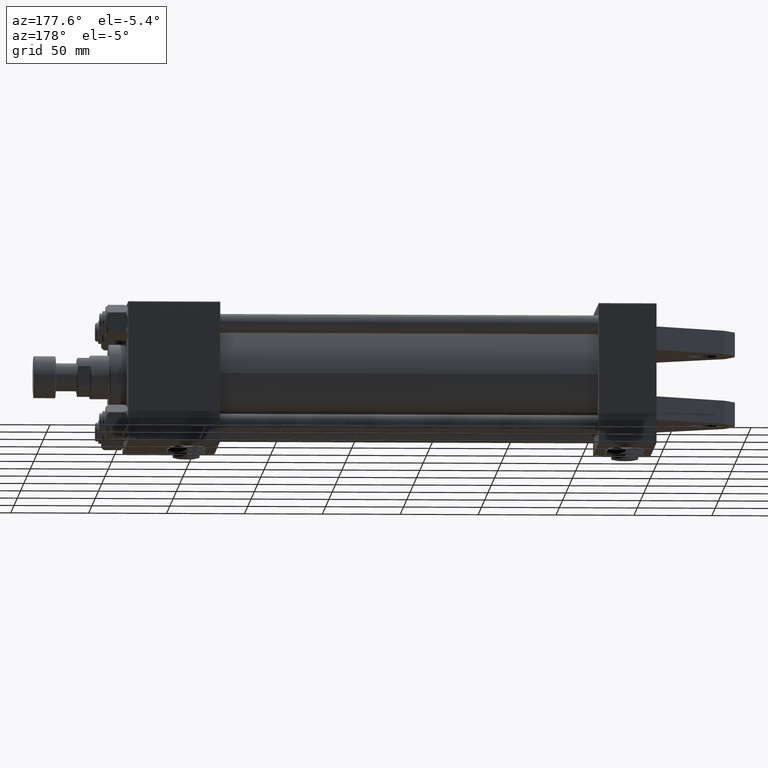
[diagram: clean part render]
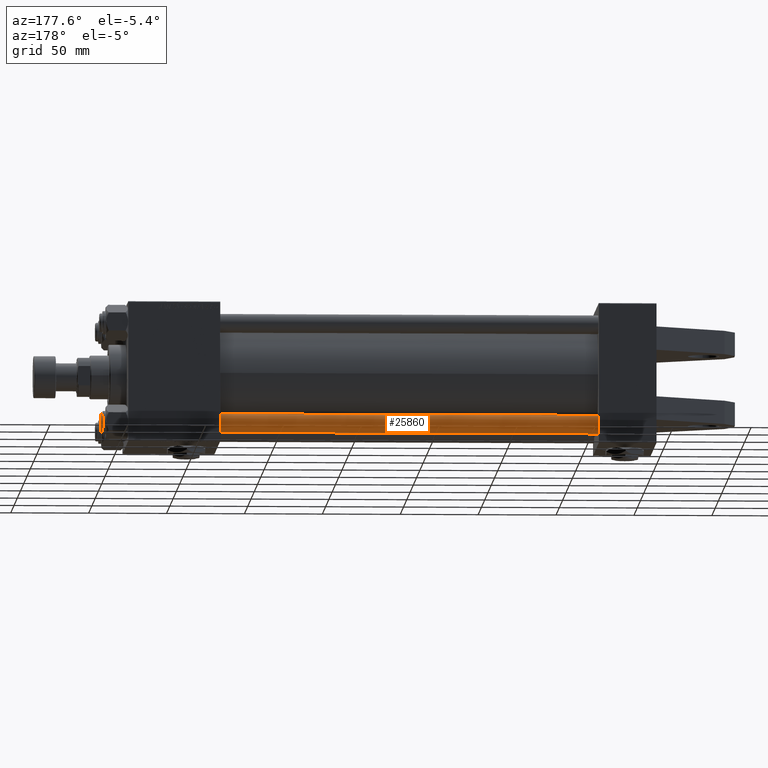
[diagram: same view with one face highlighted and labeled with its STEP entity id]
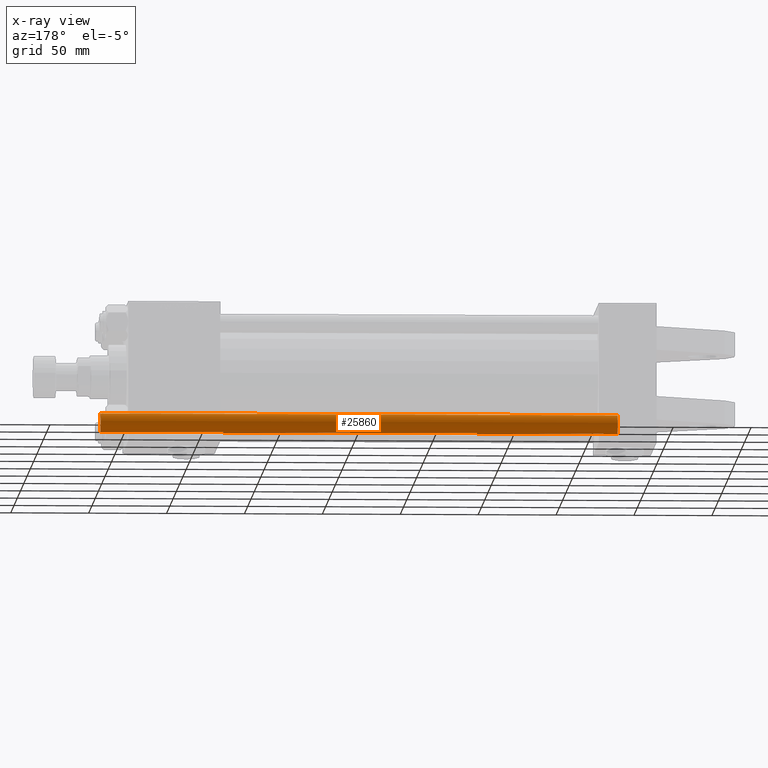
[diagram: x-ray of the same camera — body ghosted, the highlighted face saturated]
A machine part, auxiliary view. The second image highlights one B-rep face of the part: STEP entity #25860.
The next image is the same camera in x-ray: the body ghosted, the highlighted face saturated — about 0% of this face is hidden behind the body in this view.
In plain terms, the highlighted cylindrical surface (edge-blend (fillet) strip) has radius 6 mm, axis along (1, -0, -0).
Its self-contained STEP definition (entity closure, byte-faithful):
#522 = VERTEX_POINT ( 'NONE', #28605 ) ;
#4490 = EDGE_CURVE ( 'NONE', #28718, #522, #32821, .T. ) ;
#5802 = EDGE_CURVE ( 'NONE', #47000, #29480, #21941, .T. ) ;
#6775 = AXIS2_PLACEMENT_3D ( 'NONE', #44190, #31251, #11700 ) ;
#8402 = FACE_OUTER_BOUND ( 'NONE', #24166, .T. ) ;
#9032 = DIRECTION ( 'NONE',  ( -0.000000000000000000, -0.000000000000000000, -1.000000000000000000 ) ) ;
#11700 = DIRECTION ( 'NONE',  ( 1.000000000000000000, 0.000000000000000000, 0.000000000000000000 ) ) ;
#12107 = DIRECTION ( 'NONE',  ( -1.000000000000000000, 0.000000000000000000, 0.000000000000000000 ) ) ;
#15782 = ORIENTED_EDGE ( 'NONE', *, *, #18003, .T. ) ;
#18003 = EDGE_CURVE ( 'NONE', #29480, #28718, #33066, .T. ) ;
#18033 = LINE ( 'NONE', #38858, #35235 ) ;
#18575 = DIRECTION ( 'NONE',  ( -0.000000000000000000, -0.000000000000000000, 1.000000000000000000 ) ) ;
#21175 = CARTESIAN_POINT ( 'NONE',  ( 6.000000000000000888, 7.347880794884120722E-16, 333.0000000000000000 ) ) ;
#21941 = CIRCLE ( 'NONE', #6775, 6.000000000000000888 ) ;
#22238 = ORIENTED_EDGE ( 'NONE', *, *, #5802, .T. ) ;
#22861 = CARTESIAN_POINT ( 'NONE',  ( -6.000000000000000888, 0.000000000000000000, 332.5000000000001137 ) ) ;
#24071 = CARTESIAN_POINT ( 'NONE',  ( 6.000000000000000888, 7.347880794884120722E-16, 0.5000000000000004441 ) ) ;
#24166 = EDGE_LOOP ( 'NONE', ( #22238, #15782, #46731, #35653 ) ) ;
#24773 = DIRECTION ( 'NONE',  ( -0.000000000000000000, -0.000000000000000000, -1.000000000000000000 ) ) ;
#25353 = EDGE_CURVE ( 'NONE', #47000, #522, #18033, .T. ) ;
#25860 = ADVANCED_FACE ( 'NONE', ( #8402 ), #44852, .T. ) ;
#26216 = DIRECTION ( 'NONE',  ( -0.000000000000000000, -0.000000000000000000, -1.000000000000000000 ) ) ;
#28605 = CARTESIAN_POINT ( 'NONE',  ( -6.000000000000000888, 0.000000000000000000, 0.5000000000000004441 ) ) ;
#28718 = VERTEX_POINT ( 'NONE', #24071 ) ;
#29480 = VERTEX_POINT ( 'NONE', #38176 ) ;
#31251 = DIRECTION ( 'NONE',  ( 0.000000000000000000, 0.000000000000000000, -1.000000000000000000 ) ) ;
#32821 = CIRCLE ( 'NONE', #39558, 6.000000000000000888 ) ;
#33066 = LINE ( 'NONE', #21175, #49232 ) ;
#35235 = VECTOR ( 'NONE', #26216, 1000.000000000000000 ) ;
#35653 = ORIENTED_EDGE ( 'NONE', *, *, #25353, .F. ) ;
#38176 = CARTESIAN_POINT ( 'NONE',  ( 6.000000000000000888, 7.347880794884120722E-16, 332.5000000000001137 ) ) ;
#38858 = CARTESIAN_POINT ( 'NONE',  ( -6.000000000000000888, 0.000000000000000000, 333.0000000000000000 ) ) ;
#38886 = DIRECTION ( 'NONE',  ( 1.000000000000000000, 0.000000000000000000, 0.000000000000000000 ) ) ;
#39558 = AXIS2_PLACEMENT_3D ( 'NONE', #51320, #18575, #38886 ) ;
#44190 = CARTESIAN_POINT ( 'NONE',  ( 0.000000000000000000, 0.000000000000000000, 332.5000000000001137 ) ) ;
#44852 = CYLINDRICAL_SURFACE ( 'NONE', #47005, 6.000000000000000888 ) ;
#46731 = ORIENTED_EDGE ( 'NONE', *, *, #4490, .T. ) ;
#47000 = VERTEX_POINT ( 'NONE', #22861 ) ;
#47005 = AXIS2_PLACEMENT_3D ( 'NONE', #48297, #24773, #12107 ) ;
#48297 = CARTESIAN_POINT ( 'NONE',  ( 0.000000000000000000, 0.000000000000000000, 333.0000000000000000 ) ) ;
#49232 = VECTOR ( 'NONE', #9032, 1000.000000000000000 ) ;
#51320 = CARTESIAN_POINT ( 'NONE',  ( 0.000000000000000000, 0.000000000000000000, 0.5000000000000004441 ) ) ;